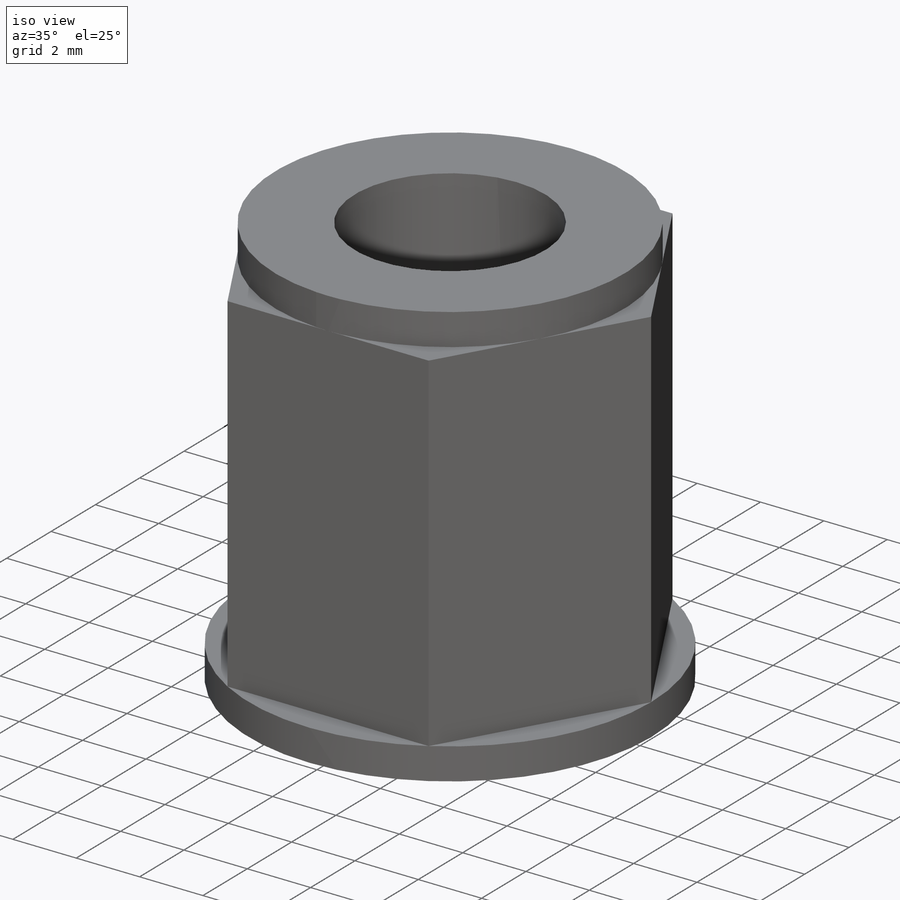
[diagram: iso view]
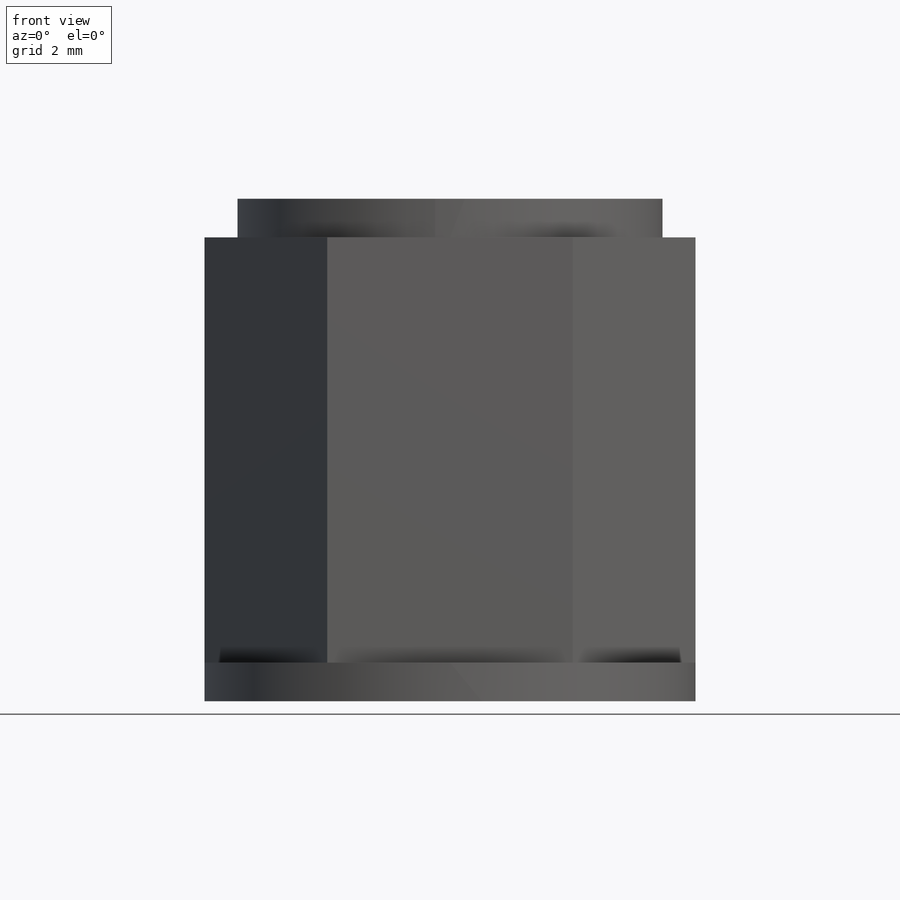
[diagram: front view]
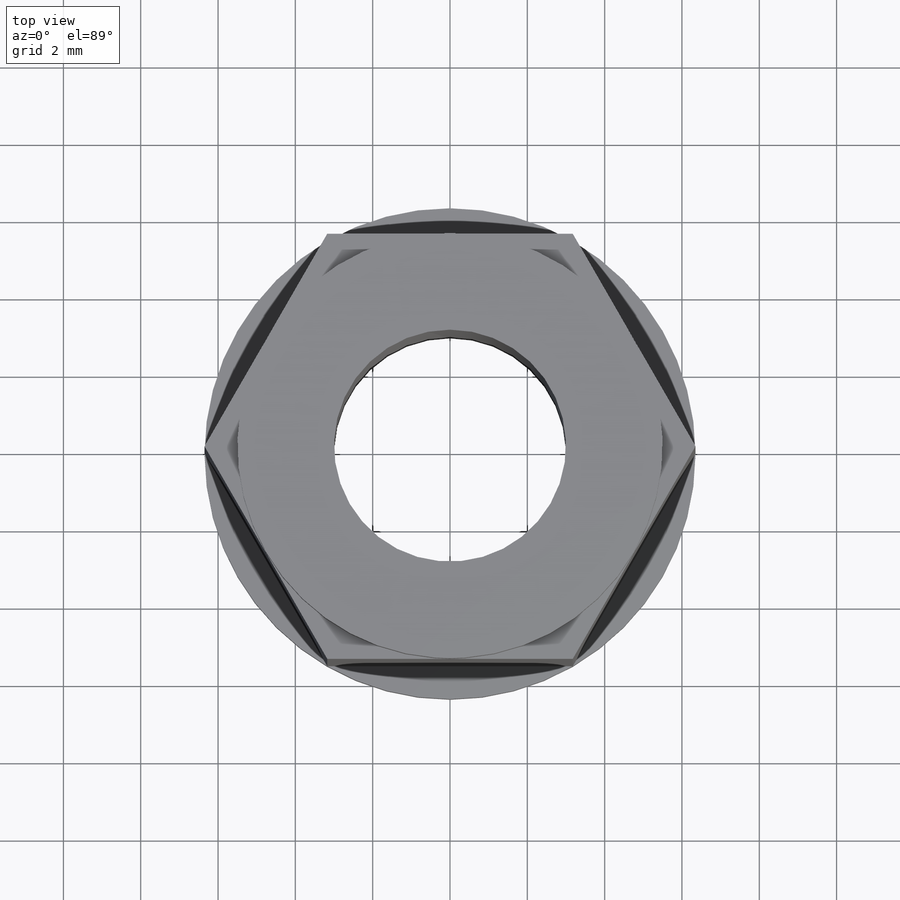
[diagram: top view]
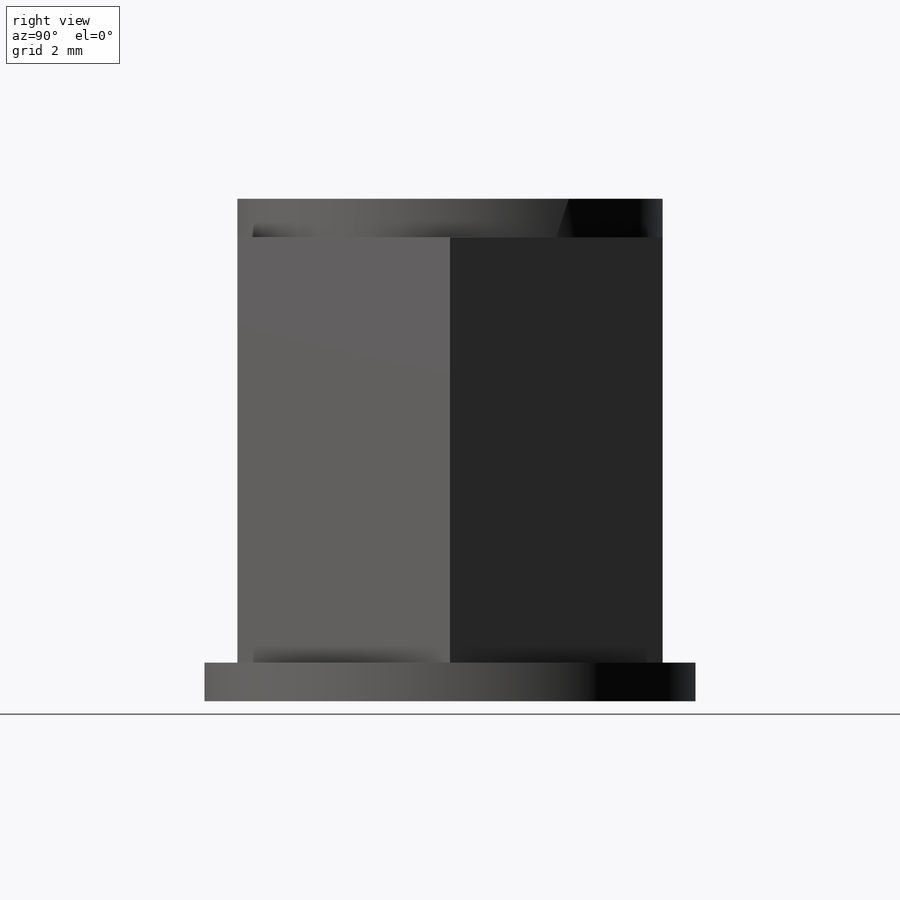
[diagram: right view]
SOLIDWORKS PART (.sldprt)
format: sldprt  version: not decoded by parser v0  size: 181,248 bytes
history: native  units: mm
features: sketch x5, plane x4, extrude x3, material x1, hole x1 (+10 scaffold rows collapsed)
feature tree (24):
  scaffold x10  (default folders/planes/origin — collapsed)
  material  "Acciaio in lega"
  plane  "Piano frontale"
  plane  "Piano superiore"
  plane  "Piano destro"
  plane  "Piano1"  Offset=11mm
  sketch  "Schizzo1"
  extrude  "Estrusione-Estrusione1"  Depth=11mm
  sketch  "Schizzo2"
  extrude  "Estrusione-Estrusione2"  Depth=1mm
  sketch  "Schizzo3"
  extrude  "Estrusione-Estrusione3"  Depth=1mm
  hole  "Foro Ø0.6 (0.6)-1"  Diameter=6mm Depth=13mm
  sketch  "Schizzo5"
  sketch  "Schizzo4"  dims[hole-wizard template sketch: 60 standard entries collapsed; hole parameters kept: c18.Thru Hole Depth=13.0mm]
decode coverage: 5 of 9 modeling features carry decoded parameters
note: ~ marks probable driven/reference dimensions
note: suppression state not decoded; provenance and decode notes live in map.json
